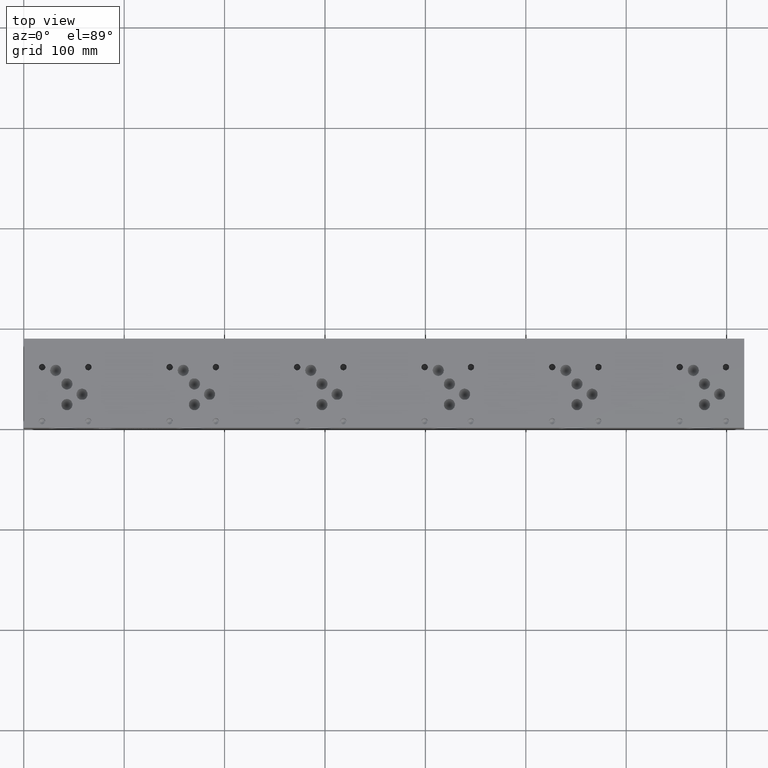
[diagram: clean part render]
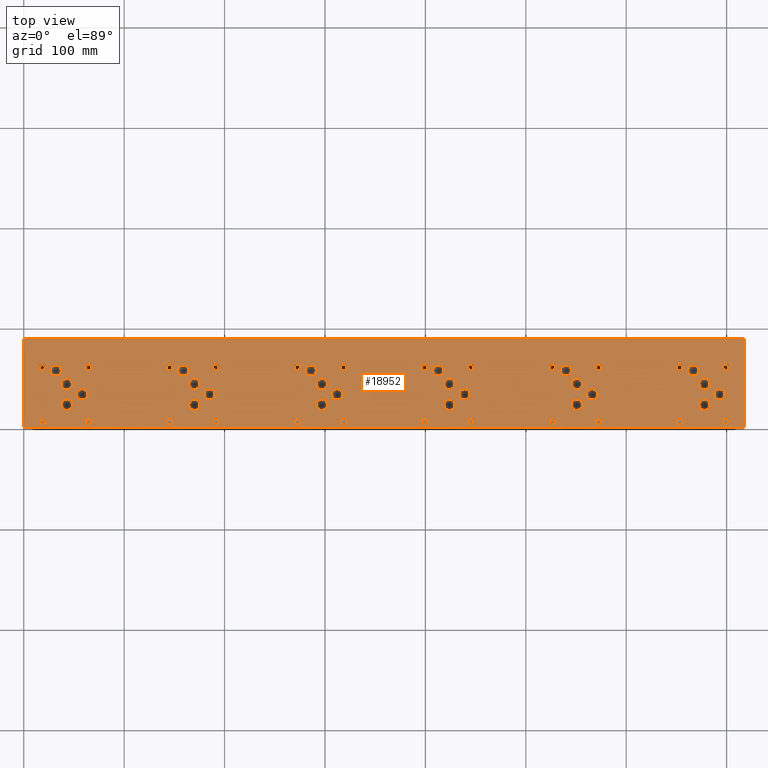
[diagram: same view with one face highlighted and labeled with its STEP entity id]
A machine part, top view. The second image highlights one B-rep face of the part: STEP entity #18952.
In plain terms, the highlighted planar face has unit normal (0, 0, 1).
Its self-contained STEP definition (entity closure, byte-faithful):
#659=CIRCLE('',#19950,3.175);
#660=CIRCLE('',#19951,3.175);
#666=CIRCLE('',#19961,3.175);
#667=CIRCLE('',#19962,3.175);
#673=CIRCLE('',#19972,3.175);
#674=CIRCLE('',#19973,3.175);
#680=CIRCLE('',#19983,3.175);
#681=CIRCLE('',#19984,3.175);
#687=CIRCLE('',#19994,3.175);
#688=CIRCLE('',#19995,3.175);
#694=CIRCLE('',#20005,3.175);
#695=CIRCLE('',#20006,3.175);
#701=CIRCLE('',#20016,3.175);
#702=CIRCLE('',#20017,3.175);
#708=CIRCLE('',#20027,3.175);
#709=CIRCLE('',#20028,3.175);
#715=CIRCLE('',#20038,3.175);
#716=CIRCLE('',#20039,3.175);
#722=CIRCLE('',#20049,3.175);
#723=CIRCLE('',#20050,3.175);
#729=CIRCLE('',#20060,3.175);
#730=CIRCLE('',#20061,3.175);
#736=CIRCLE('',#20071,3.175);
#737=CIRCLE('',#20072,3.175);
#743=CIRCLE('',#20082,3.175);
#744=CIRCLE('',#20083,3.175);
#750=CIRCLE('',#20093,3.175);
#751=CIRCLE('',#20094,3.175);
#757=CIRCLE('',#20104,3.175);
#758=CIRCLE('',#20105,3.175);
#764=CIRCLE('',#20115,3.175);
#765=CIRCLE('',#20116,3.175);
#771=CIRCLE('',#20126,3.175);
#772=CIRCLE('',#20127,3.175);
#778=CIRCLE('',#20137,3.175);
#779=CIRCLE('',#20138,3.175);
#785=CIRCLE('',#20148,3.175);
#786=CIRCLE('',#20149,3.175);
#792=CIRCLE('',#20159,3.175);
#793=CIRCLE('',#20160,3.175);
#796=CIRCLE('',#20166,5.5626);
#797=CIRCLE('',#20167,5.5626);
#800=CIRCLE('',#20172,5.5626);
#801=CIRCLE('',#20173,5.5626);
#804=CIRCLE('',#20178,5.5626);
#805=CIRCLE('',#20179,5.5626);
#808=CIRCLE('',#20184,5.5626);
#809=CIRCLE('',#20185,5.5626);
#812=CIRCLE('',#20190,5.5626);
#813=CIRCLE('',#20191,5.5626);
#816=CIRCLE('',#20196,5.5626);
#817=CIRCLE('',#20197,5.5626);
#820=CIRCLE('',#20202,5.5626);
#821=CIRCLE('',#20203,5.5626);
#824=CIRCLE('',#20208,5.5626);
#825=CIRCLE('',#20209,5.5626);
#828=CIRCLE('',#20214,5.5626);
#829=CIRCLE('',#20215,5.5626);
#832=CIRCLE('',#20220,5.5626);
#833=CIRCLE('',#20221,5.5626);
#836=CIRCLE('',#20226,5.5626);
#837=CIRCLE('',#20227,5.5626);
#840=CIRCLE('',#20232,5.5626);
#841=CIRCLE('',#20233,5.5626);
#844=CIRCLE('',#20238,5.5626);
#845=CIRCLE('',#20239,5.5626);
#848=CIRCLE('',#20244,5.5626);
#849=CIRCLE('',#20245,5.5626);
#852=CIRCLE('',#20250,5.5626);
#853=CIRCLE('',#20251,5.5626);
#856=CIRCLE('',#20256,5.5626);
#857=CIRCLE('',#20257,5.5626);
#860=CIRCLE('',#20262,5.5626);
#861=CIRCLE('',#20263,5.5626);
#864=CIRCLE('',#20268,5.5626);
#865=CIRCLE('',#20269,5.5626);
#868=CIRCLE('',#20274,5.5626);
#869=CIRCLE('',#20275,5.5626);
#872=CIRCLE('',#20280,5.5626);
#873=CIRCLE('',#20281,5.5626);
#876=CIRCLE('',#20286,5.5626);
#877=CIRCLE('',#20287,5.5626);
#880=CIRCLE('',#20292,5.5626);
#881=CIRCLE('',#20293,5.5626);
#884=CIRCLE('',#20298,5.5626);
#885=CIRCLE('',#20299,5.5626);
#888=CIRCLE('',#20304,5.5626);
#889=CIRCLE('',#20305,5.5626);
#895=CIRCLE('',#20314,3.175);
#896=CIRCLE('',#20315,3.175);
#902=CIRCLE('',#20325,3.175);
#903=CIRCLE('',#20326,3.175);
#909=CIRCLE('',#20336,3.175);
#910=CIRCLE('',#20337,3.175);
#916=CIRCLE('',#20347,3.175);
#917=CIRCLE('',#20348,3.175);
#1066=FACE_BOUND('',#3914,.T.);
#1067=FACE_BOUND('',#3915,.T.);
#1068=FACE_BOUND('',#3916,.T.);
#1069=FACE_BOUND('',#3917,.T.);
#1070=FACE_BOUND('',#3918,.T.);
#1071=FACE_BOUND('',#3919,.T.);
#1072=FACE_BOUND('',#3920,.T.);
#1073=FACE_BOUND('',#3921,.T.);
#1074=FACE_BOUND('',#3922,.T.);
#1075=FACE_BOUND('',#3923,.T.);
#1076=FACE_BOUND('',#3924,.T.);
#1077=FACE_BOUND('',#3925,.T.);
#1078=FACE_BOUND('',#3926,.T.);
#1079=FACE_BOUND('',#3927,.T.);
#1080=FACE_BOUND('',#3928,.T.);
#1081=FACE_BOUND('',#3929,.T.);
#1082=FACE_BOUND('',#3930,.T.);
#1083=FACE_BOUND('',#3931,.T.);
#1084=FACE_BOUND('',#3932,.T.);
#1085=FACE_BOUND('',#3933,.T.);
#1086=FACE_BOUND('',#3934,.T.);
#1087=FACE_BOUND('',#3935,.T.);
#1088=FACE_BOUND('',#3936,.T.);
#1089=FACE_BOUND('',#3937,.T.);
#1090=FACE_BOUND('',#3938,.T.);
#1091=FACE_BOUND('',#3939,.T.);
#1092=FACE_BOUND('',#3940,.T.);
#1093=FACE_BOUND('',#3941,.T.);
#1094=FACE_BOUND('',#3942,.T.);
#1095=FACE_BOUND('',#3943,.T.);
#1096=FACE_BOUND('',#3944,.T.);
#1097=FACE_BOUND('',#3945,.T.);
#1098=FACE_BOUND('',#3946,.T.);
#1099=FACE_BOUND('',#3947,.T.);
#1100=FACE_BOUND('',#3948,.T.);
#1101=FACE_BOUND('',#3949,.T.);
#1102=FACE_BOUND('',#3950,.T.);
#1103=FACE_BOUND('',#3951,.T.);
#1104=FACE_BOUND('',#3952,.T.);
#1105=FACE_BOUND('',#3953,.T.);
#1106=FACE_BOUND('',#3954,.T.);
#1107=FACE_BOUND('',#3955,.T.);
#1108=FACE_BOUND('',#3956,.T.);
#1109=FACE_BOUND('',#3957,.T.);
#1110=FACE_BOUND('',#3958,.T.);
#1111=FACE_BOUND('',#3959,.T.);
#1112=FACE_BOUND('',#3960,.T.);
#1113=FACE_BOUND('',#3961,.T.);
#2773=FACE_OUTER_BOUND('',#3913,.T.);
#3913=EDGE_LOOP('',(#16763,#16764,#16765,#16766));
#3914=EDGE_LOOP('',(#16767,#16768));
#3915=EDGE_LOOP('',(#16769,#16770));
#3916=EDGE_LOOP('',(#16771,#16772));
#3917=EDGE_LOOP('',(#16773,#16774));
#3918=EDGE_LOOP('',(#16775,#16776));
#3919=EDGE_LOOP('',(#16777,#16778));
#3920=EDGE_LOOP('',(#16779,#16780));
#3921=EDGE_LOOP('',(#16781,#16782));
#3922=EDGE_LOOP('',(#16783,#16784));
#3923=EDGE_LOOP('',(#16785,#16786));
#3924=EDGE_LOOP('',(#16787,#16788));
#3925=EDGE_LOOP('',(#16789,#16790));
#3926=EDGE_LOOP('',(#16791,#16792));
#3927=EDGE_LOOP('',(#16793,#16794));
#3928=EDGE_LOOP('',(#16795,#16796));
#3929=EDGE_LOOP('',(#16797,#16798));
#3930=EDGE_LOOP('',(#16799,#16800));
#3931=EDGE_LOOP('',(#16801,#16802));
#3932=EDGE_LOOP('',(#16803,#16804));
#3933=EDGE_LOOP('',(#16805,#16806));
#3934=EDGE_LOOP('',(#16807,#16808));
#3935=EDGE_LOOP('',(#16809,#16810));
#3936=EDGE_LOOP('',(#16811,#16812));
#3937=EDGE_LOOP('',(#16813,#16814));
#3938=EDGE_LOOP('',(#16815,#16816));
#3939=EDGE_LOOP('',(#16817,#16818));
#3940=EDGE_LOOP('',(#16819,#16820));
#3941=EDGE_LOOP('',(#16821,#16822));
#3942=EDGE_LOOP('',(#16823,#16824));
#3943=EDGE_LOOP('',(#16825,#16826));
#3944=EDGE_LOOP('',(#16827,#16828));
#3945=EDGE_LOOP('',(#16829,#16830));
#3946=EDGE_LOOP('',(#16831,#16832));
#3947=EDGE_LOOP('',(#16833,#16834));
#3948=EDGE_LOOP('',(#16835,#16836));
#3949=EDGE_LOOP('',(#16837,#16838));
#3950=EDGE_LOOP('',(#16839,#16840));
#3951=EDGE_LOOP('',(#16841,#16842));
#3952=EDGE_LOOP('',(#16843,#16844));
#3953=EDGE_LOOP('',(#16845,#16846));
#3954=EDGE_LOOP('',(#16847,#16848));
#3955=EDGE_LOOP('',(#16849,#16850));
#3956=EDGE_LOOP('',(#16851,#16852));
#3957=EDGE_LOOP('',(#16853,#16854));
#3958=EDGE_LOOP('',(#16855,#16856));
#3959=EDGE_LOOP('',(#16857,#16858));
#3960=EDGE_LOOP('',(#16859,#16860));
#3961=EDGE_LOOP('',(#16861,#16862));
#4021=LINE('',#24965,#5594);
#4081=LINE('',#25240,#5654);
#4341=LINE('',#27500,#5914);
#5535=LINE('',#33076,#7108);
#5594=VECTOR('',#20454,10.);
#5654=VECTOR('',#20568,10.);
#5914=VECTOR('',#20968,10.);
#7108=VECTOR('',#24698,10.);
#7159=VERTEX_POINT('',#24962);
#7160=VERTEX_POINT('',#24964);
#7219=VERTEX_POINT('',#25237);
#7220=VERTEX_POINT('',#25239);
#8647=VERTEX_POINT('',#32248);
#8648=VERTEX_POINT('',#32249);
#8655=VERTEX_POINT('',#32270);
#8656=VERTEX_POINT('',#32271);
#8663=VERTEX_POINT('',#32292);
#8664=VERTEX_POINT('',#32293);
#8671=VERTEX_POINT('',#32314);
#8672=VERTEX_POINT('',#32315);
#8679=VERTEX_POINT('',#32336);
#8680=VERTEX_POINT('',#32337);
#8687=VERTEX_POINT('',#32358);
#8688=VERTEX_POINT('',#32359);
#8695=VERTEX_POINT('',#32380);
#8696=VERTEX_POINT('',#32381);
#8703=VERTEX_POINT('',#32402);
#8704=VERTEX_POINT('',#32403);
#8711=VERTEX_POINT('',#32424);
#8712=VERTEX_POINT('',#32425);
#8719=VERTEX_POINT('',#32446);
#8720=VERTEX_POINT('',#32447);
#8727=VERTEX_POINT('',#32468);
#8728=VERTEX_POINT('',#32469);
#8735=VERTEX_POINT('',#32490);
#8736=VERTEX_POINT('',#32491);
#8743=VERTEX_POINT('',#32512);
#8744=VERTEX_POINT('',#32513);
#8751=VERTEX_POINT('',#32534);
#8752=VERTEX_POINT('',#32535);
#8759=VERTEX_POINT('',#32556);
#8760=VERTEX_POINT('',#32557);
#8767=VERTEX_POINT('',#32578);
#8768=VERTEX_POINT('',#32579);
#8775=VERTEX_POINT('',#32600);
#8776=VERTEX_POINT('',#32601);
#8783=VERTEX_POINT('',#32622);
#8784=VERTEX_POINT('',#32623);
#8791=VERTEX_POINT('',#32644);
#8792=VERTEX_POINT('',#32645);
#8799=VERTEX_POINT('',#32666);
#8800=VERTEX_POINT('',#32667);
#8804=VERTEX_POINT('',#32681);
#8805=VERTEX_POINT('',#32682);
#8809=VERTEX_POINT('',#32694);
#8810=VERTEX_POINT('',#32695);
#8814=VERTEX_POINT('',#32707);
#8815=VERTEX_POINT('',#32708);
#8819=VERTEX_POINT('',#32720);
#8820=VERTEX_POINT('',#32721);
#8824=VERTEX_POINT('',#32733);
#8825=VERTEX_POINT('',#32734);
#8829=VERTEX_POINT('',#32746);
#8830=VERTEX_POINT('',#32747);
#8834=VERTEX_POINT('',#32759);
#8835=VERTEX_POINT('',#32760);
#8839=VERTEX_POINT('',#32772);
#8840=VERTEX_POINT('',#32773);
#8844=VERTEX_POINT('',#32785);
#8845=VERTEX_POINT('',#32786);
#8849=VERTEX_POINT('',#32798);
#8850=VERTEX_POINT('',#32799);
#8854=VERTEX_POINT('',#32811);
#8855=VERTEX_POINT('',#32812);
#8859=VERTEX_POINT('',#32824);
#8860=VERTEX_POINT('',#32825);
#8864=VERTEX_POINT('',#32837);
#8865=VERTEX_POINT('',#32838);
#8869=VERTEX_POINT('',#32850);
#8870=VERTEX_POINT('',#32851);
#8874=VERTEX_POINT('',#32863);
#8875=VERTEX_POINT('',#32864);
#8879=VERTEX_POINT('',#32876);
#8880=VERTEX_POINT('',#32877);
#8884=VERTEX_POINT('',#32889);
#8885=VERTEX_POINT('',#32890);
#8889=VERTEX_POINT('',#32902);
#8890=VERTEX_POINT('',#32903);
#8894=VERTEX_POINT('',#32915);
#8895=VERTEX_POINT('',#32916);
#8899=VERTEX_POINT('',#32928);
#8900=VERTEX_POINT('',#32929);
#8904=VERTEX_POINT('',#32941);
#8905=VERTEX_POINT('',#32942);
#8909=VERTEX_POINT('',#32954);
#8910=VERTEX_POINT('',#32955);
#8914=VERTEX_POINT('',#32967);
#8915=VERTEX_POINT('',#32968);
#8919=VERTEX_POINT('',#32980);
#8920=VERTEX_POINT('',#32981);
#8927=VERTEX_POINT('',#33000);
#8928=VERTEX_POINT('',#33001);
#8935=VERTEX_POINT('',#33022);
#8936=VERTEX_POINT('',#33023);
#8943=VERTEX_POINT('',#33044);
#8944=VERTEX_POINT('',#33045);
#8951=VERTEX_POINT('',#33066);
#8952=VERTEX_POINT('',#33067);
#9027=EDGE_CURVE('',#7160,#7159,#4021,.T.);
#9111=EDGE_CURVE('',#7220,#7219,#4081,.T.);
#9581=EDGE_CURVE('',#7219,#7160,#4341,.T.);
#11211=EDGE_CURVE('',#8647,#8648,#659,.T.);
#11212=EDGE_CURVE('',#8648,#8647,#660,.T.);
#11221=EDGE_CURVE('',#8655,#8656,#666,.T.);
#11222=EDGE_CURVE('',#8656,#8655,#667,.T.);
#11231=EDGE_CURVE('',#8663,#8664,#673,.T.);
#11232=EDGE_CURVE('',#8664,#8663,#674,.T.);
#11241=EDGE_CURVE('',#8671,#8672,#680,.T.);
#11242=EDGE_CURVE('',#8672,#8671,#681,.T.);
#11251=EDGE_CURVE('',#8679,#8680,#687,.T.);
#11252=EDGE_CURVE('',#8680,#8679,#688,.T.);
#11261=EDGE_CURVE('',#8687,#8688,#694,.T.);
#11262=EDGE_CURVE('',#8688,#8687,#695,.T.);
#11271=EDGE_CURVE('',#8695,#8696,#701,.T.);
#11272=EDGE_CURVE('',#8696,#8695,#702,.T.);
#11281=EDGE_CURVE('',#8703,#8704,#708,.T.);
#11282=EDGE_CURVE('',#8704,#8703,#709,.T.);
#11291=EDGE_CURVE('',#8711,#8712,#715,.T.);
#11292=EDGE_CURVE('',#8712,#8711,#716,.T.);
#11301=EDGE_CURVE('',#8719,#8720,#722,.T.);
#11302=EDGE_CURVE('',#8720,#8719,#723,.T.);
#11311=EDGE_CURVE('',#8727,#8728,#729,.T.);
#11312=EDGE_CURVE('',#8728,#8727,#730,.T.);
#11321=EDGE_CURVE('',#8735,#8736,#736,.T.);
#11322=EDGE_CURVE('',#8736,#8735,#737,.T.);
#11331=EDGE_CURVE('',#8743,#8744,#743,.T.);
#11332=EDGE_CURVE('',#8744,#8743,#744,.T.);
#11341=EDGE_CURVE('',#8751,#8752,#750,.T.);
#11342=EDGE_CURVE('',#8752,#8751,#751,.T.);
#11351=EDGE_CURVE('',#8759,#8760,#757,.T.);
#11352=EDGE_CURVE('',#8760,#8759,#758,.T.);
#11361=EDGE_CURVE('',#8767,#8768,#764,.T.);
#11362=EDGE_CURVE('',#8768,#8767,#765,.T.);
#11371=EDGE_CURVE('',#8775,#8776,#771,.T.);
#11372=EDGE_CURVE('',#8776,#8775,#772,.T.);
#11381=EDGE_CURVE('',#8783,#8784,#778,.T.);
#11382=EDGE_CURVE('',#8784,#8783,#779,.T.);
#11391=EDGE_CURVE('',#8791,#8792,#785,.T.);
#11392=EDGE_CURVE('',#8792,#8791,#786,.T.);
#11401=EDGE_CURVE('',#8799,#8800,#792,.T.);
#11402=EDGE_CURVE('',#8800,#8799,#793,.T.);
#11408=EDGE_CURVE('',#8804,#8805,#796,.T.);
#11409=EDGE_CURVE('',#8805,#8804,#797,.T.);
#11414=EDGE_CURVE('',#8809,#8810,#800,.T.);
#11415=EDGE_CURVE('',#8810,#8809,#801,.T.);
#11420=EDGE_CURVE('',#8814,#8815,#804,.T.);
#11421=EDGE_CURVE('',#8815,#8814,#805,.T.);
#11426=EDGE_CURVE('',#8819,#8820,#808,.T.);
#11427=EDGE_CURVE('',#8820,#8819,#809,.T.);
#11432=EDGE_CURVE('',#8824,#8825,#812,.T.);
#11433=EDGE_CURVE('',#8825,#8824,#813,.T.);
#11438=EDGE_CURVE('',#8829,#8830,#816,.T.);
#11439=EDGE_CURVE('',#8830,#8829,#817,.T.);
#11444=EDGE_CURVE('',#8834,#8835,#820,.T.);
#11445=EDGE_CURVE('',#8835,#8834,#821,.T.);
#11450=EDGE_CURVE('',#8839,#8840,#824,.T.);
#11451=EDGE_CURVE('',#8840,#8839,#825,.T.);
#11456=EDGE_CURVE('',#8844,#8845,#828,.T.);
#11457=EDGE_CURVE('',#8845,#8844,#829,.T.);
#11462=EDGE_CURVE('',#8849,#8850,#832,.T.);
#11463=EDGE_CURVE('',#8850,#8849,#833,.T.);
#11468=EDGE_CURVE('',#8854,#8855,#836,.T.);
#11469=EDGE_CURVE('',#8855,#8854,#837,.T.);
#11474=EDGE_CURVE('',#8859,#8860,#840,.T.);
#11475=EDGE_CURVE('',#8860,#8859,#841,.T.);
#11480=EDGE_CURVE('',#8864,#8865,#844,.T.);
#11481=EDGE_CURVE('',#8865,#8864,#845,.T.);
#11486=EDGE_CURVE('',#8869,#8870,#848,.T.);
#11487=EDGE_CURVE('',#8870,#8869,#849,.T.);
#11492=EDGE_CURVE('',#8874,#8875,#852,.T.);
#11493=EDGE_CURVE('',#8875,#8874,#853,.T.);
#11498=EDGE_CURVE('',#8879,#8880,#856,.T.);
#11499=EDGE_CURVE('',#8880,#8879,#857,.T.);
#11504=EDGE_CURVE('',#8884,#8885,#860,.T.);
#11505=EDGE_CURVE('',#8885,#8884,#861,.T.);
#11510=EDGE_CURVE('',#8889,#8890,#864,.T.);
#11511=EDGE_CURVE('',#8890,#8889,#865,.T.);
#11516=EDGE_CURVE('',#8894,#8895,#868,.T.);
#11517=EDGE_CURVE('',#8895,#8894,#869,.T.);
#11522=EDGE_CURVE('',#8899,#8900,#872,.T.);
#11523=EDGE_CURVE('',#8900,#8899,#873,.T.);
#11528=EDGE_CURVE('',#8904,#8905,#876,.T.);
#11529=EDGE_CURVE('',#8905,#8904,#877,.T.);
#11534=EDGE_CURVE('',#8909,#8910,#880,.T.);
#11535=EDGE_CURVE('',#8910,#8909,#881,.T.);
#11540=EDGE_CURVE('',#8914,#8915,#884,.T.);
#11541=EDGE_CURVE('',#8915,#8914,#885,.T.);
#11546=EDGE_CURVE('',#8919,#8920,#888,.T.);
#11547=EDGE_CURVE('',#8920,#8919,#889,.T.);
#11555=EDGE_CURVE('',#8927,#8928,#895,.T.);
#11556=EDGE_CURVE('',#8928,#8927,#896,.T.);
#11565=EDGE_CURVE('',#8935,#8936,#902,.T.);
#11566=EDGE_CURVE('',#8936,#8935,#903,.T.);
#11575=EDGE_CURVE('',#8943,#8944,#909,.T.);
#11576=EDGE_CURVE('',#8944,#8943,#910,.T.);
#11585=EDGE_CURVE('',#8951,#8952,#916,.T.);
#11586=EDGE_CURVE('',#8952,#8951,#917,.T.);
#11590=EDGE_CURVE('',#7159,#7220,#5535,.T.);
#16763=ORIENTED_EDGE('',*,*,#9581,.T.);
#16764=ORIENTED_EDGE('',*,*,#9027,.T.);
#16765=ORIENTED_EDGE('',*,*,#11590,.T.);
#16766=ORIENTED_EDGE('',*,*,#9111,.T.);
#16767=ORIENTED_EDGE('',*,*,#11211,.T.);
#16768=ORIENTED_EDGE('',*,*,#11212,.T.);
#16769=ORIENTED_EDGE('',*,*,#11221,.T.);
#16770=ORIENTED_EDGE('',*,*,#11222,.T.);
#16771=ORIENTED_EDGE('',*,*,#11231,.T.);
#16772=ORIENTED_EDGE('',*,*,#11232,.T.);
#16773=ORIENTED_EDGE('',*,*,#11241,.T.);
#16774=ORIENTED_EDGE('',*,*,#11242,.T.);
#16775=ORIENTED_EDGE('',*,*,#11251,.T.);
#16776=ORIENTED_EDGE('',*,*,#11252,.T.);
#16777=ORIENTED_EDGE('',*,*,#11261,.T.);
#16778=ORIENTED_EDGE('',*,*,#11262,.T.);
#16779=ORIENTED_EDGE('',*,*,#11271,.T.);
#16780=ORIENTED_EDGE('',*,*,#11272,.T.);
#16781=ORIENTED_EDGE('',*,*,#11281,.T.);
#16782=ORIENTED_EDGE('',*,*,#11282,.T.);
#16783=ORIENTED_EDGE('',*,*,#11291,.T.);
#16784=ORIENTED_EDGE('',*,*,#11292,.T.);
#16785=ORIENTED_EDGE('',*,*,#11301,.T.);
#16786=ORIENTED_EDGE('',*,*,#11302,.T.);
#16787=ORIENTED_EDGE('',*,*,#11311,.T.);
#16788=ORIENTED_EDGE('',*,*,#11312,.T.);
#16789=ORIENTED_EDGE('',*,*,#11321,.T.);
#16790=ORIENTED_EDGE('',*,*,#11322,.T.);
#16791=ORIENTED_EDGE('',*,*,#11331,.T.);
#16792=ORIENTED_EDGE('',*,*,#11332,.T.);
#16793=ORIENTED_EDGE('',*,*,#11341,.T.);
#16794=ORIENTED_EDGE('',*,*,#11342,.T.);
#16795=ORIENTED_EDGE('',*,*,#11351,.T.);
#16796=ORIENTED_EDGE('',*,*,#11352,.T.);
#16797=ORIENTED_EDGE('',*,*,#11361,.T.);
#16798=ORIENTED_EDGE('',*,*,#11362,.T.);
#16799=ORIENTED_EDGE('',*,*,#11371,.T.);
#16800=ORIENTED_EDGE('',*,*,#11372,.T.);
#16801=ORIENTED_EDGE('',*,*,#11381,.T.);
#16802=ORIENTED_EDGE('',*,*,#11382,.T.);
#16803=ORIENTED_EDGE('',*,*,#11391,.T.);
#16804=ORIENTED_EDGE('',*,*,#11392,.T.);
#16805=ORIENTED_EDGE('',*,*,#11401,.T.);
#16806=ORIENTED_EDGE('',*,*,#11402,.T.);
#16807=ORIENTED_EDGE('',*,*,#11408,.T.);
#16808=ORIENTED_EDGE('',*,*,#11409,.T.);
#16809=ORIENTED_EDGE('',*,*,#11414,.T.);
#16810=ORIENTED_EDGE('',*,*,#11415,.T.);
#16811=ORIENTED_EDGE('',*,*,#11420,.T.);
#16812=ORIENTED_EDGE('',*,*,#11421,.T.);
#16813=ORIENTED_EDGE('',*,*,#11426,.T.);
#16814=ORIENTED_EDGE('',*,*,#11427,.T.);
#16815=ORIENTED_EDGE('',*,*,#11432,.T.);
#16816=ORIENTED_EDGE('',*,*,#11433,.T.);
#16817=ORIENTED_EDGE('',*,*,#11438,.T.);
#16818=ORIENTED_EDGE('',*,*,#11439,.T.);
#16819=ORIENTED_EDGE('',*,*,#11444,.T.);
#16820=ORIENTED_EDGE('',*,*,#11445,.T.);
#16821=ORIENTED_EDGE('',*,*,#11450,.T.);
#16822=ORIENTED_EDGE('',*,*,#11451,.T.);
#16823=ORIENTED_EDGE('',*,*,#11456,.T.);
#16824=ORIENTED_EDGE('',*,*,#11457,.T.);
#16825=ORIENTED_EDGE('',*,*,#11462,.T.);
#16826=ORIENTED_EDGE('',*,*,#11463,.T.);
#16827=ORIENTED_EDGE('',*,*,#11468,.T.);
#16828=ORIENTED_EDGE('',*,*,#11469,.T.);
#16829=ORIENTED_EDGE('',*,*,#11474,.T.);
#16830=ORIENTED_EDGE('',*,*,#11475,.T.);
#16831=ORIENTED_EDGE('',*,*,#11480,.T.);
#16832=ORIENTED_EDGE('',*,*,#11481,.T.);
#16833=ORIENTED_EDGE('',*,*,#11486,.T.);
#16834=ORIENTED_EDGE('',*,*,#11487,.T.);
#16835=ORIENTED_EDGE('',*,*,#11492,.T.);
#16836=ORIENTED_EDGE('',*,*,#11493,.T.);
#16837=ORIENTED_EDGE('',*,*,#11498,.T.);
#16838=ORIENTED_EDGE('',*,*,#11499,.T.);
#16839=ORIENTED_EDGE('',*,*,#11504,.T.);
#16840=ORIENTED_EDGE('',*,*,#11505,.T.);
#16841=ORIENTED_EDGE('',*,*,#11510,.T.);
#16842=ORIENTED_EDGE('',*,*,#11511,.T.);
#16843=ORIENTED_EDGE('',*,*,#11516,.T.);
#16844=ORIENTED_EDGE('',*,*,#11517,.T.);
#16845=ORIENTED_EDGE('',*,*,#11522,.T.);
#16846=ORIENTED_EDGE('',*,*,#11523,.T.);
#16847=ORIENTED_EDGE('',*,*,#11528,.T.);
#16848=ORIENTED_EDGE('',*,*,#11529,.T.);
#16849=ORIENTED_EDGE('',*,*,#11534,.T.);
#16850=ORIENTED_EDGE('',*,*,#11535,.T.);
#16851=ORIENTED_EDGE('',*,*,#11540,.T.);
#16852=ORIENTED_EDGE('',*,*,#11541,.T.);
#16853=ORIENTED_EDGE('',*,*,#11546,.T.);
#16854=ORIENTED_EDGE('',*,*,#11547,.T.);
#16855=ORIENTED_EDGE('',*,*,#11555,.T.);
#16856=ORIENTED_EDGE('',*,*,#11556,.T.);
#16857=ORIENTED_EDGE('',*,*,#11565,.T.);
#16858=ORIENTED_EDGE('',*,*,#11566,.T.);
#16859=ORIENTED_EDGE('',*,*,#11575,.T.);
#16860=ORIENTED_EDGE('',*,*,#11576,.T.);
#16861=ORIENTED_EDGE('',*,*,#11585,.T.);
#16862=ORIENTED_EDGE('',*,*,#11586,.T.);
#17349=PLANE('',#20354);
#18952=ADVANCED_FACE('',(#2773,#1066,#1067,#1068,#1069,#1070,#1071,#1072,
#1073,#1074,#1075,#1076,#1077,#1078,#1079,#1080,#1081,#1082,#1083,#1084,
#1085,#1086,#1087,#1088,#1089,#1090,#1091,#1092,#1093,#1094,#1095,#1096,
#1097,#1098,#1099,#1100,#1101,#1102,#1103,#1104,#1105,#1106,#1107,#1108,
#1109,#1110,#1111,#1112,#1113),#17349,.T.);
#19950=AXIS2_PLACEMENT_3D('',#32250,#23774,#23775);
#19951=AXIS2_PLACEMENT_3D('',#32251,#23776,#23777);
#19961=AXIS2_PLACEMENT_3D('',#32272,#23799,#23800);
#19962=AXIS2_PLACEMENT_3D('',#32273,#23801,#23802);
#19972=AXIS2_PLACEMENT_3D('',#32294,#23824,#23825);
#19973=AXIS2_PLACEMENT_3D('',#32295,#23826,#23827);
#19983=AXIS2_PLACEMENT_3D('',#32316,#23849,#23850);
#19984=AXIS2_PLACEMENT_3D('',#32317,#23851,#23852);
#19994=AXIS2_PLACEMENT_3D('',#32338,#23874,#23875);
#19995=AXIS2_PLACEMENT_3D('',#32339,#23876,#23877);
#20005=AXIS2_PLACEMENT_3D('',#32360,#23899,#23900);
#20006=AXIS2_PLACEMENT_3D('',#32361,#23901,#23902);
#20016=AXIS2_PLACEMENT_3D('',#32382,#23924,#23925);
#20017=AXIS2_PLACEMENT_3D('',#32383,#23926,#23927);
#20027=AXIS2_PLACEMENT_3D('',#32404,#23949,#23950);
#20028=AXIS2_PLACEMENT_3D('',#32405,#23951,#23952);
#20038=AXIS2_PLACEMENT_3D('',#32426,#23974,#23975);
#20039=AXIS2_PLACEMENT_3D('',#32427,#23976,#23977);
#20049=AXIS2_PLACEMENT_3D('',#32448,#23999,#24000);
#20050=AXIS2_PLACEMENT_3D('',#32449,#24001,#24002);
#20060=AXIS2_PLACEMENT_3D('',#32470,#24024,#24025);
#20061=AXIS2_PLACEMENT_3D('',#32471,#24026,#24027);
#20071=AXIS2_PLACEMENT_3D('',#32492,#24049,#24050);
#20072=AXIS2_PLACEMENT_3D('',#32493,#24051,#24052);
#20082=AXIS2_PLACEMENT_3D('',#32514,#24074,#24075);
#20083=AXIS2_PLACEMENT_3D('',#32515,#24076,#24077);
#20093=AXIS2_PLACEMENT_3D('',#32536,#24099,#24100);
#20094=AXIS2_PLACEMENT_3D('',#32537,#24101,#24102);
#20104=AXIS2_PLACEMENT_3D('',#32558,#24124,#24125);
#20105=AXIS2_PLACEMENT_3D('',#32559,#24126,#24127);
#20115=AXIS2_PLACEMENT_3D('',#32580,#24149,#24150);
#20116=AXIS2_PLACEMENT_3D('',#32581,#24151,#24152);
#20126=AXIS2_PLACEMENT_3D('',#32602,#24174,#24175);
#20127=AXIS2_PLACEMENT_3D('',#32603,#24176,#24177);
#20137=AXIS2_PLACEMENT_3D('',#32624,#24199,#24200);
#20138=AXIS2_PLACEMENT_3D('',#32625,#24201,#24202);
#20148=AXIS2_PLACEMENT_3D('',#32646,#24224,#24225);
#20149=AXIS2_PLACEMENT_3D('',#32647,#24226,#24227);
#20159=AXIS2_PLACEMENT_3D('',#32668,#24249,#24250);
#20160=AXIS2_PLACEMENT_3D('',#32669,#24251,#24252);
#20166=AXIS2_PLACEMENT_3D('',#32683,#24266,#24267);
#20167=AXIS2_PLACEMENT_3D('',#32684,#24268,#24269);
#20172=AXIS2_PLACEMENT_3D('',#32696,#24280,#24281);
#20173=AXIS2_PLACEMENT_3D('',#32697,#24282,#24283);
#20178=AXIS2_PLACEMENT_3D('',#32709,#24294,#24295);
#20179=AXIS2_PLACEMENT_3D('',#32710,#24296,#24297);
#20184=AXIS2_PLACEMENT_3D('',#32722,#24308,#24309);
#20185=AXIS2_PLACEMENT_3D('',#32723,#24310,#24311);
#20190=AXIS2_PLACEMENT_3D('',#32735,#24322,#24323);
#20191=AXIS2_PLACEMENT_3D('',#32736,#24324,#24325);
#20196=AXIS2_PLACEMENT_3D('',#32748,#24336,#24337);
#20197=AXIS2_PLACEMENT_3D('',#32749,#24338,#24339);
#20202=AXIS2_PLACEMENT_3D('',#32761,#24350,#24351);
#20203=AXIS2_PLACEMENT_3D('',#32762,#24352,#24353);
#20208=AXIS2_PLACEMENT_3D('',#32774,#24364,#24365);
#20209=AXIS2_PLACEMENT_3D('',#32775,#24366,#24367);
#20214=AXIS2_PLACEMENT_3D('',#32787,#24378,#24379);
#20215=AXIS2_PLACEMENT_3D('',#32788,#24380,#24381);
#20220=AXIS2_PLACEMENT_3D('',#32800,#24392,#24393);
#20221=AXIS2_PLACEMENT_3D('',#32801,#24394,#24395);
#20226=AXIS2_PLACEMENT_3D('',#32813,#24406,#24407);
#20227=AXIS2_PLACEMENT_3D('',#32814,#24408,#24409);
#20232=AXIS2_PLACEMENT_3D('',#32826,#24420,#24421);
#20233=AXIS2_PLACEMENT_3D('',#32827,#24422,#24423);
#20238=AXIS2_PLACEMENT_3D('',#32839,#24434,#24435);
#20239=AXIS2_PLACEMENT_3D('',#32840,#24436,#24437);
#20244=AXIS2_PLACEMENT_3D('',#32852,#24448,#24449);
#20245=AXIS2_PLACEMENT_3D('',#32853,#24450,#24451);
#20250=AXIS2_PLACEMENT_3D('',#32865,#24462,#24463);
#20251=AXIS2_PLACEMENT_3D('',#32866,#24464,#24465);
#20256=AXIS2_PLACEMENT_3D('',#32878,#24476,#24477);
#20257=AXIS2_PLACEMENT_3D('',#32879,#24478,#24479);
#20262=AXIS2_PLACEMENT_3D('',#32891,#24490,#24491);
#20263=AXIS2_PLACEMENT_3D('',#32892,#24492,#24493);
#20268=AXIS2_PLACEMENT_3D('',#32904,#24504,#24505);
#20269=AXIS2_PLACEMENT_3D('',#32905,#24506,#24507);
#20274=AXIS2_PLACEMENT_3D('',#32917,#24518,#24519);
#20275=AXIS2_PLACEMENT_3D('',#32918,#24520,#24521);
#20280=AXIS2_PLACEMENT_3D('',#32930,#24532,#24533);
#20281=AXIS2_PLACEMENT_3D('',#32931,#24534,#24535);
#20286=AXIS2_PLACEMENT_3D('',#32943,#24546,#24547);
#20287=AXIS2_PLACEMENT_3D('',#32944,#24548,#24549);
#20292=AXIS2_PLACEMENT_3D('',#32956,#24560,#24561);
#20293=AXIS2_PLACEMENT_3D('',#32957,#24562,#24563);
#20298=AXIS2_PLACEMENT_3D('',#32969,#24574,#24575);
#20299=AXIS2_PLACEMENT_3D('',#32970,#24576,#24577);
#20304=AXIS2_PLACEMENT_3D('',#32982,#24588,#24589);
#20305=AXIS2_PLACEMENT_3D('',#32983,#24590,#24591);
#20314=AXIS2_PLACEMENT_3D('',#33002,#24610,#24611);
#20315=AXIS2_PLACEMENT_3D('',#33003,#24612,#24613);
#20325=AXIS2_PLACEMENT_3D('',#33024,#24635,#24636);
#20326=AXIS2_PLACEMENT_3D('',#33025,#24637,#24638);
#20336=AXIS2_PLACEMENT_3D('',#33046,#24660,#24661);
#20337=AXIS2_PLACEMENT_3D('',#33047,#24662,#24663);
#20347=AXIS2_PLACEMENT_3D('',#33068,#24685,#24686);
#20348=AXIS2_PLACEMENT_3D('',#33069,#24687,#24688);
#20354=AXIS2_PLACEMENT_3D('',#33079,#24703,#24704);
#20454=DIRECTION('',(0.,1.,0.));
#20568=DIRECTION('',(0.,-1.,0.));
#20968=DIRECTION('',(1.,0.,0.));
#23774=DIRECTION('center_axis',(0.,0.,-1.));
#23775=DIRECTION('ref_axis',(1.,0.,0.));
#23776=DIRECTION('center_axis',(0.,0.,-1.));
#23777=DIRECTION('ref_axis',(1.,0.,0.));
#23799=DIRECTION('center_axis',(0.,0.,-1.));
#23800=DIRECTION('ref_axis',(1.,0.,0.));
#23801=DIRECTION('center_axis',(0.,0.,-1.));
#23802=DIRECTION('ref_axis',(1.,0.,0.));
#23824=DIRECTION('center_axis',(0.,0.,-1.));
#23825=DIRECTION('ref_axis',(1.,0.,0.));
#23826=DIRECTION('center_axis',(0.,0.,-1.));
#23827=DIRECTION('ref_axis',(1.,0.,0.));
#23849=DIRECTION('center_axis',(0.,0.,-1.));
#23850=DIRECTION('ref_axis',(1.,0.,0.));
#23851=DIRECTION('center_axis',(0.,0.,-1.));
#23852=DIRECTION('ref_axis',(1.,0.,0.));
#23874=DIRECTION('center_axis',(0.,0.,-1.));
#23875=DIRECTION('ref_axis',(1.,0.,0.));
#23876=DIRECTION('center_axis',(0.,0.,-1.));
#23877=DIRECTION('ref_axis',(1.,0.,0.));
#23899=DIRECTION('center_axis',(0.,0.,-1.));
#23900=DIRECTION('ref_axis',(1.,0.,0.));
#23901=DIRECTION('center_axis',(0.,0.,-1.));
#23902=DIRECTION('ref_axis',(1.,0.,0.));
#23924=DIRECTION('center_axis',(0.,0.,-1.));
#23925=DIRECTION('ref_axis',(1.,0.,0.));
#23926=DIRECTION('center_axis',(0.,0.,-1.));
#23927=DIRECTION('ref_axis',(1.,0.,0.));
#23949=DIRECTION('center_axis',(0.,0.,-1.));
#23950=DIRECTION('ref_axis',(1.,0.,0.));
#23951=DIRECTION('center_axis',(0.,0.,-1.));
#23952=DIRECTION('ref_axis',(1.,0.,0.));
#23974=DIRECTION('center_axis',(0.,0.,-1.));
#23975=DIRECTION('ref_axis',(1.,0.,0.));
#23976=DIRECTION('center_axis',(0.,0.,-1.));
#23977=DIRECTION('ref_axis',(1.,0.,0.));
#23999=DIRECTION('center_axis',(0.,0.,-1.));
#24000=DIRECTION('ref_axis',(1.,0.,0.));
#24001=DIRECTION('center_axis',(0.,0.,-1.));
#24002=DIRECTION('ref_axis',(1.,0.,0.));
#24024=DIRECTION('center_axis',(0.,0.,-1.));
#24025=DIRECTION('ref_axis',(1.,0.,0.));
#24026=DIRECTION('center_axis',(0.,0.,-1.));
#24027=DIRECTION('ref_axis',(1.,0.,0.));
#24049=DIRECTION('center_axis',(0.,0.,-1.));
#24050=DIRECTION('ref_axis',(1.,0.,0.));
#24051=DIRECTION('center_axis',(0.,0.,-1.));
#24052=DIRECTION('ref_axis',(1.,0.,0.));
#24074=DIRECTION('center_axis',(0.,0.,-1.));
#24075=DIRECTION('ref_axis',(1.,0.,0.));
#24076=DIRECTION('center_axis',(0.,0.,-1.));
#24077=DIRECTION('ref_axis',(1.,0.,0.));
#24099=DIRECTION('center_axis',(0.,0.,-1.));
#24100=DIRECTION('ref_axis',(1.,0.,0.));
#24101=DIRECTION('center_axis',(0.,0.,-1.));
#24102=DIRECTION('ref_axis',(1.,0.,0.));
#24124=DIRECTION('center_axis',(0.,0.,-1.));
#24125=DIRECTION('ref_axis',(1.,0.,0.));
#24126=DIRECTION('center_axis',(0.,0.,-1.));
#24127=DIRECTION('ref_axis',(1.,0.,0.));
#24149=DIRECTION('center_axis',(0.,0.,-1.));
#24150=DIRECTION('ref_axis',(1.,0.,0.));
#24151=DIRECTION('center_axis',(0.,0.,-1.));
#24152=DIRECTION('ref_axis',(1.,0.,0.));
#24174=DIRECTION('center_axis',(0.,0.,-1.));
#24175=DIRECTION('ref_axis',(1.,0.,0.));
#24176=DIRECTION('center_axis',(0.,0.,-1.));
#24177=DIRECTION('ref_axis',(1.,0.,0.));
#24199=DIRECTION('center_axis',(0.,0.,-1.));
#24200=DIRECTION('ref_axis',(1.,0.,0.));
#24201=DIRECTION('center_axis',(0.,0.,-1.));
#24202=DIRECTION('ref_axis',(1.,0.,0.));
#24224=DIRECTION('center_axis',(0.,0.,-1.));
#24225=DIRECTION('ref_axis',(1.,0.,0.));
#24226=DIRECTION('center_axis',(0.,0.,-1.));
#24227=DIRECTION('ref_axis',(1.,0.,0.));
#24249=DIRECTION('center_axis',(0.,0.,-1.));
#24250=DIRECTION('ref_axis',(1.,0.,0.));
#24251=DIRECTION('center_axis',(0.,0.,-1.));
#24252=DIRECTION('ref_axis',(1.,0.,0.));
#24266=DIRECTION('center_axis',(0.,0.,-1.));
#24267=DIRECTION('ref_axis',(1.,0.,0.));
#24268=DIRECTION('center_axis',(0.,0.,-1.));
#24269=DIRECTION('ref_axis',(1.,0.,0.));
#24280=DIRECTION('center_axis',(0.,0.,-1.));
#24281=DIRECTION('ref_axis',(1.,0.,0.));
#24282=DIRECTION('center_axis',(0.,0.,-1.));
#24283=DIRECTION('ref_axis',(1.,0.,0.));
#24294=DIRECTION('center_axis',(0.,0.,-1.));
#24295=DIRECTION('ref_axis',(1.,0.,0.));
#24296=DIRECTION('center_axis',(0.,0.,-1.));
#24297=DIRECTION('ref_axis',(1.,0.,0.));
#24308=DIRECTION('center_axis',(0.,0.,-1.));
#24309=DIRECTION('ref_axis',(1.,0.,0.));
#24310=DIRECTION('center_axis',(0.,0.,-1.));
#24311=DIRECTION('ref_axis',(1.,0.,0.));
#24322=DIRECTION('center_axis',(0.,0.,-1.));
#24323=DIRECTION('ref_axis',(1.,0.,0.));
#24324=DIRECTION('center_axis',(0.,0.,-1.));
#24325=DIRECTION('ref_axis',(1.,0.,0.));
#24336=DIRECTION('center_axis',(0.,0.,-1.));
#24337=DIRECTION('ref_axis',(1.,0.,0.));
#24338=DIRECTION('center_axis',(0.,0.,-1.));
#24339=DIRECTION('ref_axis',(1.,0.,0.));
#24350=DIRECTION('center_axis',(0.,0.,-1.));
#24351=DIRECTION('ref_axis',(1.,0.,0.));
#24352=DIRECTION('center_axis',(0.,0.,-1.));
#24353=DIRECTION('ref_axis',(1.,0.,0.));
#24364=DIRECTION('center_axis',(0.,0.,-1.));
#24365=DIRECTION('ref_axis',(1.,0.,0.));
#24366=DIRECTION('center_axis',(0.,0.,-1.));
#24367=DIRECTION('ref_axis',(1.,0.,0.));
#24378=DIRECTION('center_axis',(0.,0.,-1.));
#24379=DIRECTION('ref_axis',(1.,0.,0.));
#24380=DIRECTION('center_axis',(0.,0.,-1.));
#24381=DIRECTION('ref_axis',(1.,0.,0.));
#24392=DIRECTION('center_axis',(0.,0.,-1.));
#24393=DIRECTION('ref_axis',(1.,0.,0.));
#24394=DIRECTION('center_axis',(0.,0.,-1.));
#24395=DIRECTION('ref_axis',(1.,0.,0.));
#24406=DIRECTION('center_axis',(0.,0.,-1.));
#24407=DIRECTION('ref_axis',(1.,0.,0.));
#24408=DIRECTION('center_axis',(0.,0.,-1.));
#24409=DIRECTION('ref_axis',(1.,0.,0.));
#24420=DIRECTION('center_axis',(0.,0.,-1.));
#24421=DIRECTION('ref_axis',(1.,0.,0.));
#24422=DIRECTION('center_axis',(0.,0.,-1.));
#24423=DIRECTION('ref_axis',(1.,0.,0.));
#24434=DIRECTION('center_axis',(0.,0.,-1.));
#24435=DIRECTION('ref_axis',(1.,0.,0.));
#24436=DIRECTION('center_axis',(0.,0.,-1.));
#24437=DIRECTION('ref_axis',(1.,0.,0.));
#24448=DIRECTION('center_axis',(0.,0.,-1.));
#24449=DIRECTION('ref_axis',(1.,0.,0.));
#24450=DIRECTION('center_axis',(0.,0.,-1.));
#24451=DIRECTION('ref_axis',(1.,0.,0.));
#24462=DIRECTION('center_axis',(0.,0.,-1.));
#24463=DIRECTION('ref_axis',(1.,0.,0.));
#24464=DIRECTION('center_axis',(0.,0.,-1.));
#24465=DIRECTION('ref_axis',(1.,0.,0.));
#24476=DIRECTION('center_axis',(0.,0.,-1.));
#24477=DIRECTION('ref_axis',(1.,0.,0.));
#24478=DIRECTION('center_axis',(0.,0.,-1.));
#24479=DIRECTION('ref_axis',(1.,0.,0.));
#24490=DIRECTION('center_axis',(0.,0.,-1.));
#24491=DIRECTION('ref_axis',(1.,0.,0.));
#24492=DIRECTION('center_axis',(0.,0.,-1.));
#24493=DIRECTION('ref_axis',(1.,0.,0.));
#24504=DIRECTION('center_axis',(0.,0.,-1.));
#24505=DIRECTION('ref_axis',(1.,0.,0.));
#24506=DIRECTION('center_axis',(0.,0.,-1.));
#24507=DIRECTION('ref_axis',(1.,0.,0.));
#24518=DIRECTION('center_axis',(0.,0.,-1.));
#24519=DIRECTION('ref_axis',(1.,0.,0.));
#24520=DIRECTION('center_axis',(0.,0.,-1.));
#24521=DIRECTION('ref_axis',(1.,0.,0.));
#24532=DIRECTION('center_axis',(0.,0.,-1.));
#24533=DIRECTION('ref_axis',(1.,0.,0.));
#24534=DIRECTION('center_axis',(0.,0.,-1.));
#24535=DIRECTION('ref_axis',(1.,0.,0.));
#24546=DIRECTION('center_axis',(0.,0.,-1.));
#24547=DIRECTION('ref_axis',(1.,0.,0.));
#24548=DIRECTION('center_axis',(0.,0.,-1.));
#24549=DIRECTION('ref_axis',(1.,0.,0.));
#24560=DIRECTION('center_axis',(0.,0.,-1.));
#24561=DIRECTION('ref_axis',(1.,0.,0.));
#24562=DIRECTION('center_axis',(0.,0.,-1.));
#24563=DIRECTION('ref_axis',(1.,0.,0.));
#24574=DIRECTION('center_axis',(0.,0.,-1.));
#24575=DIRECTION('ref_axis',(1.,0.,0.));
#24576=DIRECTION('center_axis',(0.,0.,-1.));
#24577=DIRECTION('ref_axis',(1.,0.,0.));
#24588=DIRECTION('center_axis',(0.,0.,-1.));
#24589=DIRECTION('ref_axis',(1.,0.,0.));
#24590=DIRECTION('center_axis',(0.,0.,-1.));
#24591=DIRECTION('ref_axis',(1.,0.,0.));
#24610=DIRECTION('center_axis',(0.,0.,-1.));
#24611=DIRECTION('ref_axis',(1.,0.,0.));
#24612=DIRECTION('center_axis',(0.,0.,-1.));
#24613=DIRECTION('ref_axis',(1.,0.,0.));
#24635=DIRECTION('center_axis',(0.,0.,-1.));
#24636=DIRECTION('ref_axis',(1.,0.,0.));
#24637=DIRECTION('center_axis',(0.,0.,-1.));
#24638=DIRECTION('ref_axis',(1.,0.,0.));
#24660=DIRECTION('center_axis',(0.,0.,-1.));
#24661=DIRECTION('ref_axis',(1.,0.,0.));
#24662=DIRECTION('center_axis',(0.,0.,-1.));
#24663=DIRECTION('ref_axis',(1.,0.,0.));
#24685=DIRECTION('center_axis',(0.,0.,-1.));
#24686=DIRECTION('ref_axis',(1.,0.,0.));
#24687=DIRECTION('center_axis',(0.,0.,-1.));
#24688=DIRECTION('ref_axis',(1.,0.,0.));
#24698=DIRECTION('',(-1.,0.,0.));
#24703=DIRECTION('center_axis',(0.,0.,1.));
#24704=DIRECTION('ref_axis',(1.,0.,0.));
#24962=CARTESIAN_POINT('',(717.55,88.9,88.9));
#24964=CARTESIAN_POINT('',(717.55,0.,88.9));
#24965=CARTESIAN_POINT('',(717.55,0.,88.9));
#25237=CARTESIAN_POINT('',(0.,0.,88.9));
#25239=CARTESIAN_POINT('',(0.,88.9,88.9));
#25240=CARTESIAN_POINT('',(0.,88.9,88.9));
#27500=CARTESIAN_POINT('',(0.,0.,88.9));
#32248=CARTESIAN_POINT('',(702.4624,6.35,88.9));
#32249=CARTESIAN_POINT('',(696.1124,6.35,88.9));
#32250=CARTESIAN_POINT('Origin',(699.2874,6.35,88.9));
#32251=CARTESIAN_POINT('Origin',(699.2874,6.35,88.9));
#32270=CARTESIAN_POINT('',(656.4122,60.325,88.9));
#32271=CARTESIAN_POINT('',(650.0622,60.325,88.9));
#32272=CARTESIAN_POINT('Origin',(653.2372,60.325,88.9));
#32273=CARTESIAN_POINT('Origin',(653.2372,60.325,88.9));
#32292=CARTESIAN_POINT('',(575.4624,6.35,88.9));
#32293=CARTESIAN_POINT('',(569.1124,6.35,88.9));
#32294=CARTESIAN_POINT('Origin',(572.2874,6.35,88.9));
#32295=CARTESIAN_POINT('Origin',(572.2874,6.35,88.9));
#32314=CARTESIAN_POINT('',(529.4122,60.325,88.9));
#32315=CARTESIAN_POINT('',(523.0622,60.325,88.9));
#32316=CARTESIAN_POINT('Origin',(526.2372,60.325,88.9));
#32317=CARTESIAN_POINT('Origin',(526.2372,60.325,88.9));
#32336=CARTESIAN_POINT('',(448.4624,6.35,88.9));
#32337=CARTESIAN_POINT('',(442.1124,6.35,88.9));
#32338=CARTESIAN_POINT('Origin',(445.2874,6.35,88.9));
#32339=CARTESIAN_POINT('Origin',(445.2874,6.35,88.9));
#32358=CARTESIAN_POINT('',(402.4122,60.325,88.9));
#32359=CARTESIAN_POINT('',(396.0622,60.325,88.9));
#32360=CARTESIAN_POINT('Origin',(399.2372,60.325,88.9));
#32361=CARTESIAN_POINT('Origin',(399.2372,60.325,88.9));
#32380=CARTESIAN_POINT('',(321.4624,6.35,88.9));
#32381=CARTESIAN_POINT('',(315.1124,6.35,88.9));
#32382=CARTESIAN_POINT('Origin',(318.2874,6.35,88.9));
#32383=CARTESIAN_POINT('Origin',(318.2874,6.35,88.9));
#32402=CARTESIAN_POINT('',(275.4122,60.325,88.9));
#32403=CARTESIAN_POINT('',(269.0622,60.325,88.9));
#32404=CARTESIAN_POINT('Origin',(272.2372,60.325,88.9));
#32405=CARTESIAN_POINT('Origin',(272.2372,60.325,88.9));
#32424=CARTESIAN_POINT('',(194.4624,6.35,88.9));
#32425=CARTESIAN_POINT('',(188.1124,6.35,88.9));
#32426=CARTESIAN_POINT('Origin',(191.2874,6.35,88.9));
#32427=CARTESIAN_POINT('Origin',(191.2874,6.35,88.9));
#32446=CARTESIAN_POINT('',(148.4122,60.325,88.9));
#32447=CARTESIAN_POINT('',(142.0622,60.325,88.9));
#32448=CARTESIAN_POINT('Origin',(145.2372,60.325,88.9));
#32449=CARTESIAN_POINT('Origin',(145.2372,60.325,88.9));
#32468=CARTESIAN_POINT('',(194.4624,60.325,88.9));
#32469=CARTESIAN_POINT('',(188.1124,60.325,88.9));
#32470=CARTESIAN_POINT('Origin',(191.2874,60.325,88.9));
#32471=CARTESIAN_POINT('Origin',(191.2874,60.325,88.9));
#32490=CARTESIAN_POINT('',(148.4122,6.35,88.9));
#32491=CARTESIAN_POINT('',(142.0622,6.35,88.9));
#32492=CARTESIAN_POINT('Origin',(145.2372,6.35,88.9));
#32493=CARTESIAN_POINT('Origin',(145.2372,6.35,88.9));
#32512=CARTESIAN_POINT('',(321.4624,60.325,88.9));
#32513=CARTESIAN_POINT('',(315.1124,60.325,88.9));
#32514=CARTESIAN_POINT('Origin',(318.2874,60.325,88.9));
#32515=CARTESIAN_POINT('Origin',(318.2874,60.325,88.9));
#32534=CARTESIAN_POINT('',(275.4122,6.35,88.9));
#32535=CARTESIAN_POINT('',(269.0622,6.35,88.9));
#32536=CARTESIAN_POINT('Origin',(272.2372,6.35,88.9));
#32537=CARTESIAN_POINT('Origin',(272.2372,6.35,88.9));
#32556=CARTESIAN_POINT('',(448.4624,60.325,88.9));
#32557=CARTESIAN_POINT('',(442.1124,60.325,88.9));
#32558=CARTESIAN_POINT('Origin',(445.2874,60.325,88.9));
#32559=CARTESIAN_POINT('Origin',(445.2874,60.325,88.9));
#32578=CARTESIAN_POINT('',(402.4122,6.35,88.9));
#32579=CARTESIAN_POINT('',(396.0622,6.35,88.9));
#32580=CARTESIAN_POINT('Origin',(399.2372,6.35,88.9));
#32581=CARTESIAN_POINT('Origin',(399.2372,6.35,88.9));
#32600=CARTESIAN_POINT('',(575.4624,60.325,88.9));
#32601=CARTESIAN_POINT('',(569.1124,60.325,88.9));
#32602=CARTESIAN_POINT('Origin',(572.2874,60.325,88.9));
#32603=CARTESIAN_POINT('Origin',(572.2874,60.325,88.9));
#32622=CARTESIAN_POINT('',(529.4122,6.35,88.9));
#32623=CARTESIAN_POINT('',(523.0622,6.35,88.9));
#32624=CARTESIAN_POINT('Origin',(526.2372,6.35,88.9));
#32625=CARTESIAN_POINT('Origin',(526.2372,6.35,88.9));
#32644=CARTESIAN_POINT('',(702.4624,60.325,88.9));
#32645=CARTESIAN_POINT('',(696.1124,60.325,88.9));
#32646=CARTESIAN_POINT('Origin',(699.2874,60.325,88.9));
#32647=CARTESIAN_POINT('Origin',(699.2874,60.325,88.9));
#32666=CARTESIAN_POINT('',(656.4122,6.35,88.9));
#32667=CARTESIAN_POINT('',(650.0622,6.35,88.9));
#32668=CARTESIAN_POINT('Origin',(653.2372,6.35,88.9));
#32669=CARTESIAN_POINT('Origin',(653.2372,6.35,88.9));
#32681=CARTESIAN_POINT('',(683.4378,43.6372,88.9));
#32682=CARTESIAN_POINT('',(672.3126,43.6372,88.9));
#32683=CARTESIAN_POINT('Origin',(677.8752,43.6372,88.9));
#32684=CARTESIAN_POINT('Origin',(677.8752,43.6372,88.9));
#32694=CARTESIAN_POINT('',(698.5254,33.3248,88.9));
#32695=CARTESIAN_POINT('',(687.4002,33.3248,88.9));
#32696=CARTESIAN_POINT('Origin',(692.9628,33.3248,88.9));
#32697=CARTESIAN_POINT('Origin',(692.9628,33.3248,88.9));
#32707=CARTESIAN_POINT('',(556.4378,43.6372,88.9));
#32708=CARTESIAN_POINT('',(545.3126,43.6372,88.9));
#32709=CARTESIAN_POINT('Origin',(550.8752,43.6372,88.9));
#32710=CARTESIAN_POINT('Origin',(550.8752,43.6372,88.9));
#32720=CARTESIAN_POINT('',(571.5254,33.3248,88.9));
#32721=CARTESIAN_POINT('',(560.4002,33.3248,88.9));
#32722=CARTESIAN_POINT('Origin',(565.9628,33.3248,88.9));
#32723=CARTESIAN_POINT('Origin',(565.9628,33.3248,88.9));
#32733=CARTESIAN_POINT('',(429.4378,43.6372,88.9));
#32734=CARTESIAN_POINT('',(418.3126,43.6372,88.9));
#32735=CARTESIAN_POINT('Origin',(423.8752,43.6372,88.9));
#32736=CARTESIAN_POINT('Origin',(423.8752,43.6372,88.9));
#32746=CARTESIAN_POINT('',(444.5254,33.3248,88.9));
#32747=CARTESIAN_POINT('',(433.4002,33.3248,88.9));
#32748=CARTESIAN_POINT('Origin',(438.9628,33.3248,88.9));
#32749=CARTESIAN_POINT('Origin',(438.9628,33.3248,88.9));
#32759=CARTESIAN_POINT('',(302.4378,43.6372,88.9));
#32760=CARTESIAN_POINT('',(291.3126,43.6372,88.9));
#32761=CARTESIAN_POINT('Origin',(296.8752,43.6372,88.9));
#32762=CARTESIAN_POINT('Origin',(296.8752,43.6372,88.9));
#32772=CARTESIAN_POINT('',(317.5254,33.3248,88.9));
#32773=CARTESIAN_POINT('',(306.4002,33.3248,88.9));
#32774=CARTESIAN_POINT('Origin',(311.9628,33.3248,88.9));
#32775=CARTESIAN_POINT('Origin',(311.9628,33.3248,88.9));
#32785=CARTESIAN_POINT('',(175.4378,43.6372,88.9));
#32786=CARTESIAN_POINT('',(164.3126,43.6372,88.9));
#32787=CARTESIAN_POINT('Origin',(169.8752,43.6372,88.9));
#32788=CARTESIAN_POINT('Origin',(169.8752,43.6372,88.9));
#32798=CARTESIAN_POINT('',(190.5254,33.3248,88.9));
#32799=CARTESIAN_POINT('',(179.4002,33.3248,88.9));
#32800=CARTESIAN_POINT('Origin',(184.9628,33.3248,88.9));
#32801=CARTESIAN_POINT('Origin',(184.9628,33.3248,88.9));
#32811=CARTESIAN_POINT('',(48.4251,43.64228,88.9));
#32812=CARTESIAN_POINT('',(37.2999,43.64228,88.9));
#32813=CARTESIAN_POINT('Origin',(42.8625,43.64228,88.9));
#32814=CARTESIAN_POINT('Origin',(42.8625,43.64228,88.9));
#32824=CARTESIAN_POINT('',(63.5254,33.3248,88.9));
#32825=CARTESIAN_POINT('',(52.4002,33.3248,88.9));
#32826=CARTESIAN_POINT('Origin',(57.9628,33.3248,88.9));
#32827=CARTESIAN_POINT('Origin',(57.9628,33.3248,88.9));
#32837=CARTESIAN_POINT('',(37.3126,57.15,88.9));
#32838=CARTESIAN_POINT('',(26.1874,57.15,88.9));
#32839=CARTESIAN_POINT('Origin',(31.75,57.15,88.9));
#32840=CARTESIAN_POINT('Origin',(31.75,57.15,88.9));
#32850=CARTESIAN_POINT('',(48.43018,23.00732,88.9));
#32851=CARTESIAN_POINT('',(37.30498,23.00732,88.9));
#32852=CARTESIAN_POINT('Origin',(42.86758,23.00732,88.9));
#32853=CARTESIAN_POINT('Origin',(42.86758,23.00732,88.9));
#32863=CARTESIAN_POINT('',(164.3126,57.15,88.9));
#32864=CARTESIAN_POINT('',(153.1874,57.15,88.9));
#32865=CARTESIAN_POINT('Origin',(158.75,57.15,88.9));
#32866=CARTESIAN_POINT('Origin',(158.75,57.15,88.9));
#32876=CARTESIAN_POINT('',(175.4378,23.0124,88.9));
#32877=CARTESIAN_POINT('',(164.3126,23.0124,88.9));
#32878=CARTESIAN_POINT('Origin',(169.8752,23.0124,88.9));
#32879=CARTESIAN_POINT('Origin',(169.8752,23.0124,88.9));
#32889=CARTESIAN_POINT('',(291.3126,57.15,88.9));
#32890=CARTESIAN_POINT('',(280.1874,57.15,88.9));
#32891=CARTESIAN_POINT('Origin',(285.75,57.15,88.9));
#32892=CARTESIAN_POINT('Origin',(285.75,57.15,88.9));
#32902=CARTESIAN_POINT('',(302.4378,23.0124,88.9));
#32903=CARTESIAN_POINT('',(291.3126,23.0124,88.9));
#32904=CARTESIAN_POINT('Origin',(296.8752,23.0124,88.9));
#32905=CARTESIAN_POINT('Origin',(296.8752,23.0124,88.9));
#32915=CARTESIAN_POINT('',(418.3126,57.15,88.9));
#32916=CARTESIAN_POINT('',(407.1874,57.15,88.9));
#32917=CARTESIAN_POINT('Origin',(412.75,57.15,88.9));
#32918=CARTESIAN_POINT('Origin',(412.75,57.15,88.9));
#32928=CARTESIAN_POINT('',(429.4378,23.0124,88.9));
#32929=CARTESIAN_POINT('',(418.3126,23.0124,88.9));
#32930=CARTESIAN_POINT('Origin',(423.8752,23.0124,88.9));
#32931=CARTESIAN_POINT('Origin',(423.8752,23.0124,88.9));
#32941=CARTESIAN_POINT('',(545.3126,57.15,88.9));
#32942=CARTESIAN_POINT('',(534.1874,57.15,88.9));
#32943=CARTESIAN_POINT('Origin',(539.75,57.15,88.9));
#32944=CARTESIAN_POINT('Origin',(539.75,57.15,88.9));
#32954=CARTESIAN_POINT('',(556.4378,23.0124,88.9));
#32955=CARTESIAN_POINT('',(545.3126,23.0124,88.9));
#32956=CARTESIAN_POINT('Origin',(550.8752,23.0124,88.9));
#32957=CARTESIAN_POINT('Origin',(550.8752,23.0124,88.9));
#32967=CARTESIAN_POINT('',(672.3126,57.15,88.9));
#32968=CARTESIAN_POINT('',(661.1874,57.15,88.9));
#32969=CARTESIAN_POINT('Origin',(666.75,57.15,88.9));
#32970=CARTESIAN_POINT('Origin',(666.75,57.15,88.9));
#32980=CARTESIAN_POINT('',(683.4378,23.0124,88.9));
#32981=CARTESIAN_POINT('',(672.3126,23.0124,88.9));
#32982=CARTESIAN_POINT('Origin',(677.8752,23.0124,88.9));
#32983=CARTESIAN_POINT('Origin',(677.8752,23.0124,88.9));
#33000=CARTESIAN_POINT('',(67.4624,6.3627,88.9));
#33001=CARTESIAN_POINT('',(61.1124,6.3627,88.9));
#33002=CARTESIAN_POINT('Origin',(64.2874,6.3627,88.9));
#33003=CARTESIAN_POINT('Origin',(64.2874,6.3627,88.9));
#33022=CARTESIAN_POINT('',(21.4122,60.325,88.9));
#33023=CARTESIAN_POINT('',(15.0622,60.325,88.9));
#33024=CARTESIAN_POINT('Origin',(18.2372,60.325,88.9));
#33025=CARTESIAN_POINT('Origin',(18.2372,60.325,88.9));
#33044=CARTESIAN_POINT('',(67.4624,60.325,88.9));
#33045=CARTESIAN_POINT('',(61.1124,60.325,88.9));
#33046=CARTESIAN_POINT('Origin',(64.2874,60.325,88.9));
#33047=CARTESIAN_POINT('Origin',(64.2874,60.325,88.9));
#33066=CARTESIAN_POINT('',(21.4122,6.35,88.9));
#33067=CARTESIAN_POINT('',(15.0622,6.35,88.9));
#33068=CARTESIAN_POINT('Origin',(18.2372,6.35,88.9));
#33069=CARTESIAN_POINT('Origin',(18.2372,6.35,88.9));
#33076=CARTESIAN_POINT('',(717.55,88.9,88.9));
#33079=CARTESIAN_POINT('Origin',(358.775,44.45,88.9));